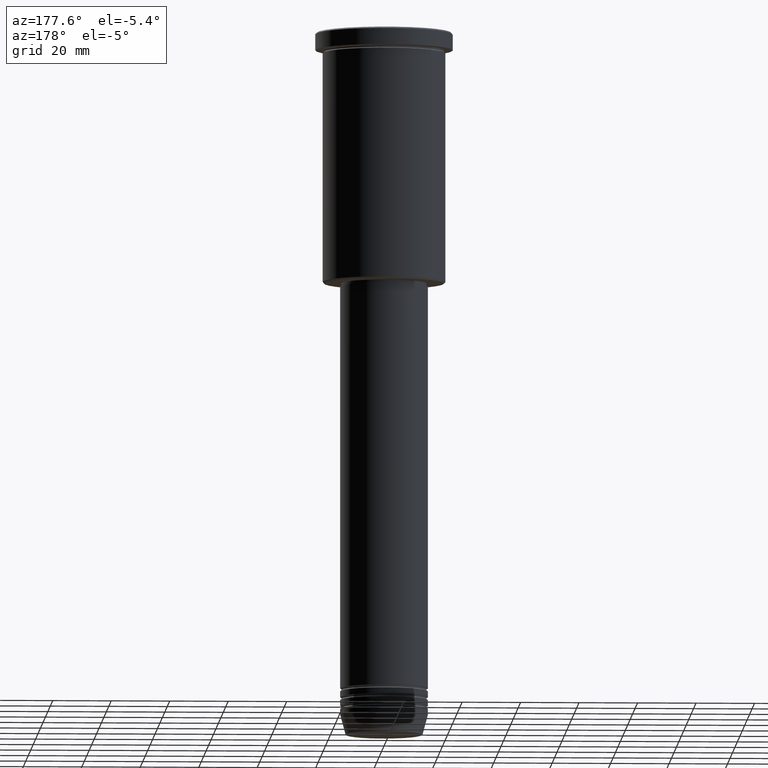
[diagram: clean part render]
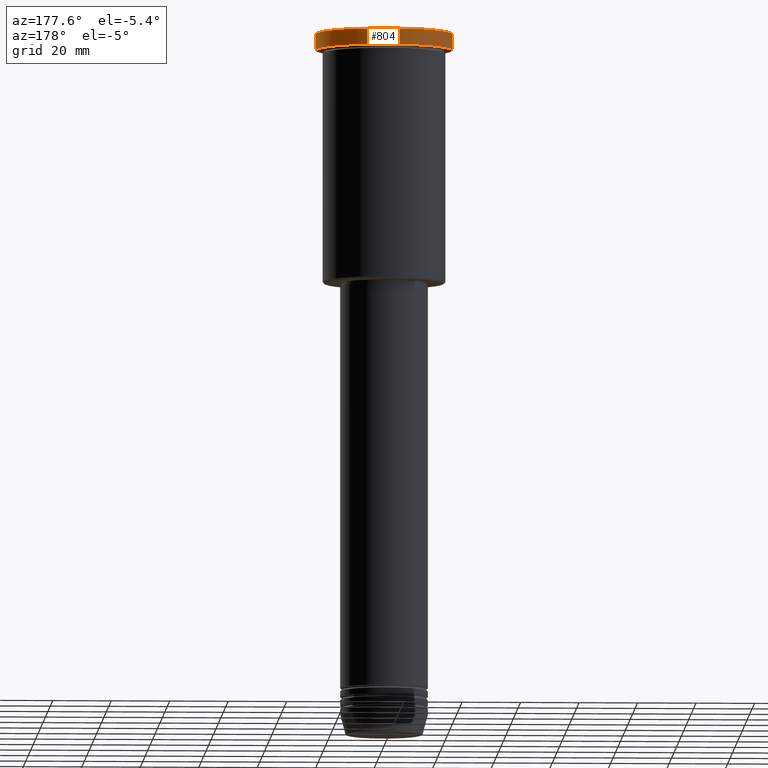
[diagram: same view with one face highlighted and labeled with its STEP entity id]
A machine part, auxiliary view. The second image highlights one B-rep face of the part: STEP entity #804.
In plain terms, the highlighted cylindrical surface (partial cylindrical patch) has radius 23.5 mm, axis along (-0, -0, 1).
Its self-contained STEP definition (entity closure, byte-faithful):
#16 = DIRECTION ( 'NONE',  ( 1.000000000000000000, 0.000000000000000000, 0.000000000000000000 ) ) ;
#97 = DIRECTION ( 'NONE',  ( -0.000000000000000000, -0.000000000000000000, 1.000000000000000000 ) ) ;
#136 = CARTESIAN_POINT ( 'NONE',  ( -23.50000000000000000, 2.877919977996280320E-15, 0.000000000000000000 ) ) ;
#149 = DIRECTION ( 'NONE',  ( -0.000000000000000000, -0.000000000000000000, 1.000000000000000000 ) ) ;
#161 = DIRECTION ( 'NONE',  ( -0.000000000000000000, -0.000000000000000000, 1.000000000000000000 ) ) ;
#267 = DIRECTION ( 'NONE',  ( 1.000000000000000000, 0.000000000000000000, 0.000000000000000000 ) ) ;
#294 = DIRECTION ( 'NONE',  ( -0.000000000000000000, -0.000000000000000000, 1.000000000000000000 ) ) ;
#301 = AXIS2_PLACEMENT_3D ( 'NONE', #691, #161, #963 ) ;
#306 = ORIENTED_EDGE ( 'NONE', *, *, #655, .T. ) ;
#337 = EDGE_CURVE ( 'NONE', #758, #466, #408, .T. ) ;
#338 = CIRCLE ( 'NONE', #301, 23.50000000000000000 ) ;
#340 = AXIS2_PLACEMENT_3D ( 'NONE', #545, #97, #16 ) ;
#355 = CIRCLE ( 'NONE', #1028, 23.50000000000000000 ) ;
#401 = EDGE_LOOP ( 'NONE', ( #498, #828, #306, #936 ) ) ;
#408 = LINE ( 'NONE', #136, #797 ) ;
#427 = LINE ( 'NONE', #967, #854 ) ;
#466 = VERTEX_POINT ( 'NONE', #615 ) ;
#468 = VERTEX_POINT ( 'NONE', #509 ) ;
#498 = ORIENTED_EDGE ( 'NONE', *, *, #508, .T. ) ;
#508 = EDGE_CURVE ( 'NONE', #468, #758, #338, .T. ) ;
#509 = CARTESIAN_POINT ( 'NONE',  ( 23.50000000000000000, 0.000000000000000000, -5.999999999999994671 ) ) ;
#545 = CARTESIAN_POINT ( 'NONE',  ( 0.000000000000000000, 0.000000000000000000, 0.000000000000000000 ) ) ;
#549 = EDGE_CURVE ( 'NONE', #468, #916, #427, .T. ) ;
#615 = CARTESIAN_POINT ( 'NONE',  ( -23.50000000000000000, 2.877919977996280320E-15, -0.5000000000000281997 ) ) ;
#655 = EDGE_CURVE ( 'NONE', #466, #916, #355, .T. ) ;
#691 = CARTESIAN_POINT ( 'NONE',  ( 0.000000000000000000, 0.000000000000000000, -5.999999999999994671 ) ) ;
#758 = VERTEX_POINT ( 'NONE', #1015 ) ;
#797 = VECTOR ( 'NONE', #294, 1000.000000000000000 ) ;
#804 = ADVANCED_FACE ( 'NONE', ( #924 ), #834, .T. ) ;
#816 = CARTESIAN_POINT ( 'NONE',  ( 0.000000000000000000, 0.000000000000000000, -0.5000000000000281997 ) ) ;
#828 = ORIENTED_EDGE ( 'NONE', *, *, #337, .T. ) ;
#834 = CYLINDRICAL_SURFACE ( 'NONE', #340, 23.50000000000000000 ) ;
#854 = VECTOR ( 'NONE', #149, 1000.000000000000000 ) ;
#916 = VERTEX_POINT ( 'NONE', #999 ) ;
#924 = FACE_OUTER_BOUND ( 'NONE', #401, .T. ) ;
#936 = ORIENTED_EDGE ( 'NONE', *, *, #549, .F. ) ;
#963 = DIRECTION ( 'NONE',  ( 1.000000000000000000, 0.000000000000000000, 0.000000000000000000 ) ) ;
#967 = CARTESIAN_POINT ( 'NONE',  ( 23.50000000000000000, 0.000000000000000000, 0.000000000000000000 ) ) ;
#999 = CARTESIAN_POINT ( 'NONE',  ( 23.50000000000000000, 0.000000000000000000, -0.5000000000000281997 ) ) ;
#1015 = CARTESIAN_POINT ( 'NONE',  ( -23.50000000000000000, 2.877919977996280320E-15, -5.999999999999994671 ) ) ;
#1028 = AXIS2_PLACEMENT_3D ( 'NONE', #816, #1085, #267 ) ;
#1085 = DIRECTION ( 'NONE',  ( 0.000000000000000000, 0.000000000000000000, -1.000000000000000000 ) ) ;